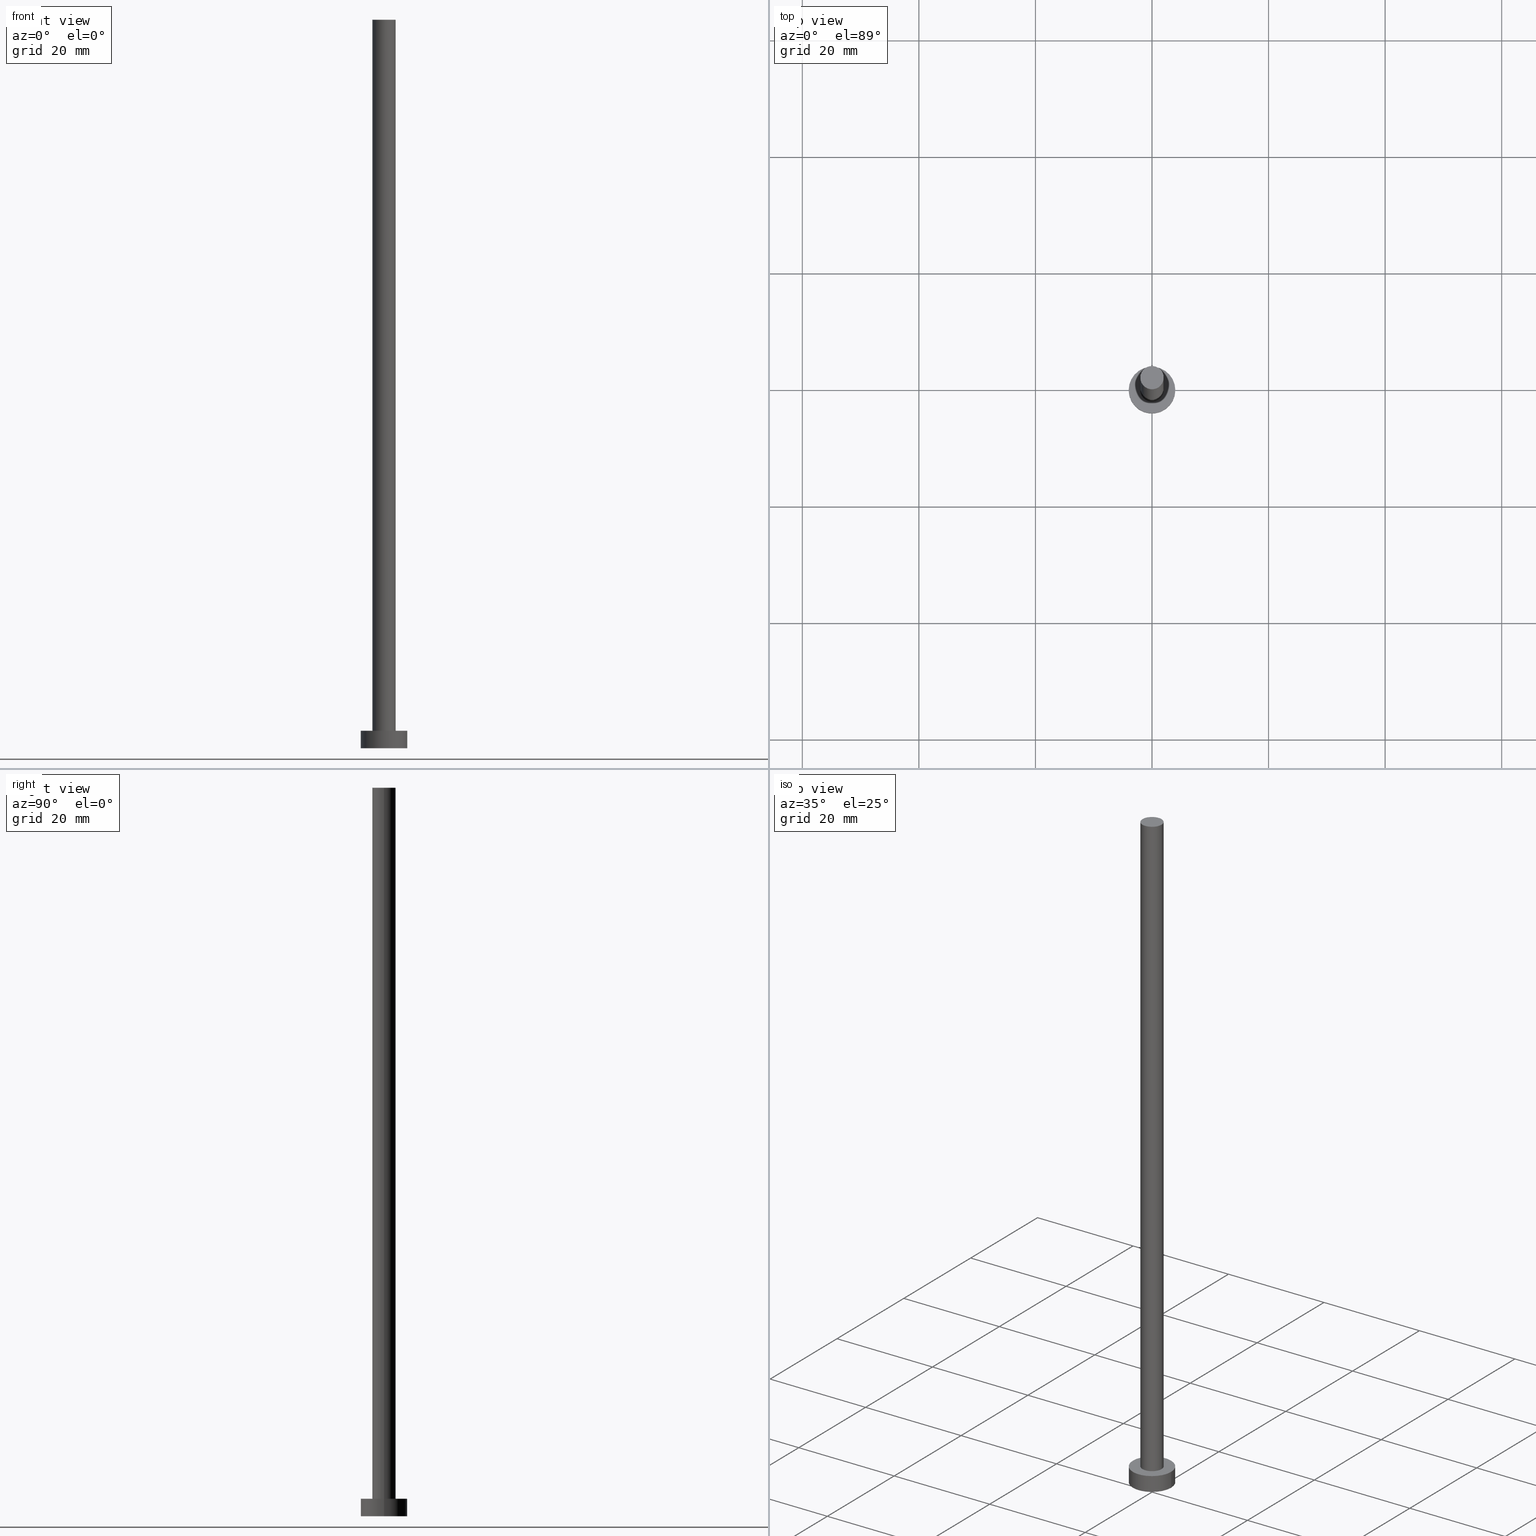
[diagram: canonical four-view strip — front | top / right | iso, engineering-drawing reading convention]
A machine part, canonical four-view strip (front | top / right | iso — engineering-drawing reading convention). The complete STEP part file that produces these views, byte-faithful:
ISO-10303-21;
HEADER;
FILE_DESCRIPTION (( 'STEP AP203' ),
    '1' );
FILE_NAME ('e45c.STEP',
    '2023-02-12T12:39:57',
    ( '' ),
    ( '' ),
    'SwSTEP 2.0',
    'SolidWorks 2019',
    '' );
FILE_SCHEMA (( 'CONFIG_CONTROL_DESIGN' ));
ENDSEC;

DATA;
#1 =( NAMED_UNIT ( * ) PLANE_ANGLE_UNIT ( ) SI_UNIT ( $, .RADIAN. ) );
#2 = SECURITY_CLASSIFICATION ( '', '', #237 ) ;
#3 = PERSON_AND_ORGANIZATION_ROLE ( 'classification_officer' ) ;
#4 = APPROVAL ( #110, 'NEUR�EN�' ) ;
#5 = CARTESIAN_POINT ( 'NONE',  ( 0.000000000000000000, 0.000000000000000000, 3.000000000000000000 ) ) ;
#6 = EDGE_LOOP ( 'NONE', ( #243, #97 ) ) ;
#7 = CIRCLE ( 'NONE', #185, 2.000000000000000000 ) ;
#8 = ORIENTED_EDGE ( 'NONE', *, *, #83, .F. ) ;
#9 = LOCAL_TIME ( 13, 39, 57.00000000000000000, #179 ) ;
#10 = ORIENTED_EDGE ( 'NONE', *, *, #111, .T. ) ;
#11 = PRODUCT_DEFINITION ( 'NEZN�M�', '', #41, #196 ) ;
#12 = CARTESIAN_POINT ( 'NONE',  ( 4.000000000000000000, 4.898587196589412829E-16, 3.000000000000000000 ) ) ;
#13 = DIRECTION ( 'NONE',  ( 0.000000000000000000, 0.000000000000000000, 1.000000000000000000 ) ) ;
#14 = CC_DESIGN_DATE_AND_TIME_ASSIGNMENT ( #163, #68, ( #11 ) ) ;
#15 = FACE_OUTER_BOUND ( 'NONE', #134, .T. ) ;
#16 = AXIS2_PLACEMENT_3D ( 'NONE', #174, #215, #65 ) ;
#17 = CARTESIAN_POINT ( 'NONE',  ( 0.000000000000000000, 0.000000000000000000, 0.000000000000000000 ) ) ;
#18 = DIRECTION ( 'NONE',  ( -0.000000000000000000, -0.000000000000000000, -1.000000000000000000 ) ) ;
#19 = COORDINATED_UNIVERSAL_TIME_OFFSET ( 1, 0, .AHEAD. ) ;
#20 = CIRCLE ( 'NONE', #167, 4.000000000000000000 ) ;
#21 = APPROVAL ( #224, 'NEUR�EN�' ) ;
#22 = PERSON_AND_ORGANIZATION_ROLE ( 'design_supplier' ) ;
#23 = PERSON_AND_ORGANIZATION ( #78, #148 ) ;
#24 = APPLICATION_PROTOCOL_DEFINITION ( 'international standard', 'config_control_design', 1994, #62 ) ;
#25 = AXIS2_PLACEMENT_3D ( 'NONE', #206, #112, #184 ) ;
#26 = CALENDAR_DATE ( 2023, 12, 2 ) ;
#27 = ORIENTED_EDGE ( 'NONE', *, *, #61, .F. ) ;
#28 = MANIFOLD_SOLID_BREP ( 'P�idat vysunut�m3', #47 ) ;
#29 = DIRECTION ( 'NONE',  ( 1.000000000000000000, 0.000000000000000000, 0.000000000000000000 ) ) ;
#30 = CC_DESIGN_PERSON_AND_ORGANIZATION_ASSIGNMENT ( #89, #146, ( #41 ) ) ;
#31 = VERTEX_POINT ( 'NONE', #172 ) ;
#32 = CC_DESIGN_PERSON_AND_ORGANIZATION_ASSIGNMENT ( #23, #3, ( #2 ) ) ;
#33 = ORIENTED_EDGE ( 'NONE', *, *, #245, .F. ) ;
#34 = CIRCLE ( 'NONE', #64, 4.000000000000000000 ) ;
#35 = CIRCLE ( 'NONE', #246, 2.000000000000000000 ) ;
#36 = DIRECTION ( 'NONE',  ( 1.000000000000000000, 0.000000000000000000, 0.000000000000000000 ) ) ;
#37 = CARTESIAN_POINT ( 'NONE',  ( 0.000000000000000000, 0.000000000000000000, 3.000000000000000000 ) ) ;
#38 = DIRECTION ( 'NONE',  ( 0.000000000000000000, 0.000000000000000000, 1.000000000000000000 ) ) ;
#39 = DIRECTION ( 'NONE',  ( 0.000000000000000000, 0.000000000000000000, 1.000000000000000000 ) ) ;
#40 = LOCAL_TIME ( 13, 39, 57.00000000000000000, #204 ) ;
#41 = PRODUCT_DEFINITION_FORMATION_WITH_SPECIFIED_SOURCE ( 'LIBOVOLN�', '', #222, .NOT_KNOWN. ) ;
#42 = LINE ( 'NONE', #121, #74 ) ;
#43 = DIRECTION ( 'NONE',  ( 1.000000000000000000, 0.000000000000000000, 0.000000000000000000 ) ) ;
#44 = APPROVAL_PERSON_ORGANIZATION ( #126, #147, #221 ) ;
#45 = COORDINATED_UNIVERSAL_TIME_OFFSET ( 1, 0, .AHEAD. ) ;
#46 = CALENDAR_DATE ( 2023, 12, 2 ) ;
#47 = CLOSED_SHELL ( 'NONE', ( #55, #75, #105, #238, #192, #109, #216 ) ) ;
#48 = DIRECTION ( 'NONE',  ( 1.000000000000000000, 0.000000000000000000, 0.000000000000000000 ) ) ;
#49 = SHAPE_DEFINITION_REPRESENTATION ( #69, #254 ) ;
#50 = VERTEX_POINT ( 'NONE', #248 ) ;
#51 = APPROVAL_DATE_TIME ( #56, #21 ) ;
#52 = ORIENTED_EDGE ( 'NONE', *, *, #240, .T. ) ;
#53 = AXIS2_PLACEMENT_3D ( 'NONE', #5, #149, #73 ) ;
#54 = EDGE_LOOP ( 'NONE', ( #33, #80 ) ) ;
#55 = ADVANCED_FACE ( 'NONE', ( #155 ), #209, .T. ) ;
#56 = DATE_AND_TIME ( #114, #153 ) ;
#57 = DIRECTION ( 'NONE',  ( -1.000000000000000000, 0.000000000000000000, 0.000000000000000000 ) ) ;
#58 = AXIS2_PLACEMENT_3D ( 'NONE', #232, #213, #138 ) ;
#59 = CARTESIAN_POINT ( 'NONE',  ( 4.000000000000000000, 4.898587196589412829E-16, 0.000000000000000000 ) ) ;
#60 = DIRECTION ( 'NONE',  ( -0.000000000000000000, -0.000000000000000000, -1.000000000000000000 ) ) ;
#61 = EDGE_CURVE ( 'NONE', #99, #152, #34, .T. ) ;
#62 = APPLICATION_CONTEXT ( 'configuration controlled 3d designs of mechanical parts and assemblies' ) ;
#63 = PLANE ( 'NONE',  #164 ) ;
#64 = AXIS2_PLACEMENT_3D ( 'NONE', #76, #132, #29 ) ;
#65 = DIRECTION ( 'NONE',  ( 1.000000000000000000, 0.000000000000000000, -0.000000000000000000 ) ) ;
#66 = EDGE_CURVE ( 'NONE', #152, #188, #139, .T. ) ;
#67 = APPROVAL_ROLE ( '' ) ;
#68 = DATE_TIME_ROLE ( 'creation_date' ) ;
#69 = PRODUCT_DEFINITION_SHAPE ( 'NONE', 'NONE',  #11 ) ;
#70 = CALENDAR_DATE ( 2023, 12, 2 ) ;
#71 = EDGE_CURVE ( 'NONE', #189, #188, #137, .T. ) ;
#72 =( LENGTH_UNIT ( ) NAMED_UNIT ( * ) SI_UNIT ( .MILLI., .METRE. ) );
#73 = DIRECTION ( 'NONE',  ( 1.000000000000000000, 0.000000000000000000, 0.000000000000000000 ) ) ;
#74 = VECTOR ( 'NONE', #194, 1000.000000000000000 ) ;
#75 = ADVANCED_FACE ( 'NONE', ( #250 ), #252, .T. ) ;
#76 = CARTESIAN_POINT ( 'NONE',  ( 0.000000000000000000, 0.000000000000000000, 3.000000000000000000 ) ) ;
#77 = ORIENTED_EDGE ( 'NONE', *, *, #226, .F. ) ;
#78 = PERSON ( 'NEUR�EN�', 'NEUR�EN�', 'NEUR�EN�', ('NEUR�EN�'), ('NEUR�EN�'), ('NEUR�EN�') ) ;
#79 = PRODUCT_RELATED_PRODUCT_CATEGORY ( 'detail', '', ( #222 ) ) ;
#80 = ORIENTED_EDGE ( 'NONE', *, *, #111, .F. ) ;
#81 = LINE ( 'NONE', #236, #130 ) ;
#82 = CC_DESIGN_APPROVAL ( #147, ( #11 ) ) ;
#83 = EDGE_CURVE ( 'NONE', #154, #31, #201, .T. ) ;
#84 = FACE_OUTER_BOUND ( 'NONE', #131, .T. ) ;
#85 = DIRECTION ( 'NONE',  ( -0.000000000000000000, -0.000000000000000000, -1.000000000000000000 ) ) ;
#86 = CARTESIAN_POINT ( 'NONE',  ( 0.000000000000000000, 0.000000000000000000, 3.000000000000000000 ) ) ;
#87 = FACE_OUTER_BOUND ( 'NONE', #6, .T. ) ;
#88 = CALENDAR_DATE ( 2023, 12, 2 ) ;
#89 = PERSON_AND_ORGANIZATION ( #78, #148 ) ;
#90 = AXIS2_PLACEMENT_3D ( 'NONE', #191, #85, #157 ) ;
#91 = VECTOR ( 'NONE', #18, 1000.000000000000000 ) ;
#92 = CC_DESIGN_DATE_AND_TIME_ASSIGNMENT ( #241, #96, ( #2 ) ) ;
#93 = AXIS2_PLACEMENT_3D ( 'NONE', #37, #198, #57 ) ;
#94 = ORIENTED_EDGE ( 'NONE', *, *, #207, .F. ) ;
#95 = APPROVAL_PERSON_ORGANIZATION ( #255, #4, #67 ) ;
#96 = DATE_TIME_ROLE ( 'classification_date' ) ;
#97 = ORIENTED_EDGE ( 'NONE', *, *, #61, .T. ) ;
#98 = ORIENTED_EDGE ( 'NONE', *, *, #101, .T. ) ;
#99 = VERTEX_POINT ( 'NONE', #12 ) ;
#100 = DIRECTION ( 'NONE',  ( 0.000000000000000000, 0.000000000000000000, 1.000000000000000000 ) ) ;
#101 = EDGE_CURVE ( 'NONE', #31, #154, #7, .T. ) ;
#102 = CARTESIAN_POINT ( 'NONE',  ( -4.000000000000000000, 0.000000000000000000, 3.000000000000000000 ) ) ;
#103 = DIRECTION ( 'NONE',  ( 0.000000000000000000, 0.000000000000000000, 1.000000000000000000 ) ) ;
#104 = FACE_OUTER_BOUND ( 'NONE', #136, .T. ) ;
#105 = ADVANCED_FACE ( 'NONE', ( #84 ), #253, .T. ) ;
#106 = FACE_BOUND ( 'NONE', #54, .T. ) ;
#107 = PERSON_AND_ORGANIZATION_ROLE ( 'creator' ) ;
#108 = PERSON_AND_ORGANIZATION ( #78, #148 ) ;
#109 = ADVANCED_FACE ( 'NONE', ( #197 ), #156, .T. ) ;
#110 = APPROVAL_STATUS ( 'not_yet_approved' ) ;
#111 = EDGE_CURVE ( 'NONE', #187, #50, #193, .T. ) ;
#112 = DIRECTION ( 'NONE',  ( -0.000000000000000000, -0.000000000000000000, -1.000000000000000000 ) ) ;
#113 = ORIENTED_EDGE ( 'NONE', *, *, #71, .F. ) ;
#114 = CALENDAR_DATE ( 2023, 12, 2 ) ;
#115 = ORIENTED_EDGE ( 'NONE', *, *, #66, .T. ) ;
#116 = COORDINATED_UNIVERSAL_TIME_OFFSET ( 1, 0, .AHEAD. ) ;
#117 = ORIENTED_EDGE ( 'NONE', *, *, #71, .T. ) ;
#118 = LOCAL_TIME ( 13, 39, 57.00000000000000000, #45 ) ;
#119 = PLANE ( 'NONE',  #235 ) ;
#120 = DIRECTION ( 'NONE',  ( 0.000000000000000000, 0.000000000000000000, 1.000000000000000000 ) ) ;
#121 = CARTESIAN_POINT ( 'NONE',  ( 2.000000000000000000, 2.449293598294705921E-16, 125.0000000000000000 ) ) ;
#122 = CC_DESIGN_PERSON_AND_ORGANIZATION_ASSIGNMENT ( #108, #124, ( #222 ) ) ;
#123 = CARTESIAN_POINT ( 'NONE',  ( 4.000000000000000000, 4.898587196589412829E-16, 3.000000000000000000 ) ) ;
#124 = PERSON_AND_ORGANIZATION_ROLE ( 'design_owner' ) ;
#125 = AXIS2_PLACEMENT_3D ( 'NONE', #86, #38, #36 ) ;
#126 = PERSON_AND_ORGANIZATION ( #78, #148 ) ;
#127 = EDGE_CURVE ( 'NONE', #188, #189, #20, .T. ) ;
#128 =( NAMED_UNIT ( * ) SI_UNIT ( $, .STERADIAN. ) SOLID_ANGLE_UNIT ( ) );
#129 = APPLICATION_PROTOCOL_DEFINITION ( 'international standard', 'config_control_design', 1994, #183 ) ;
#130 = VECTOR ( 'NONE', #220, 1000.000000000000000 ) ;
#131 = EDGE_LOOP ( 'NONE', ( #77, #168, #115, #247 ) ) ;
#132 = DIRECTION ( 'NONE',  ( 0.000000000000000000, 0.000000000000000000, 1.000000000000000000 ) ) ;
#133 = AXIS2_PLACEMENT_3D ( 'NONE', #217, #144, #158 ) ;
#134 = EDGE_LOOP ( 'NONE', ( #98, #135 ) ) ;
#135 = ORIENTED_EDGE ( 'NONE', *, *, #83, .T. ) ;
#136 = EDGE_LOOP ( 'NONE', ( #169, #113 ) ) ;
#137 = CIRCLE ( 'NONE', #58, 4.000000000000000000 ) ;
#138 = DIRECTION ( 'NONE',  ( 1.000000000000000000, 0.000000000000000000, 0.000000000000000000 ) ) ;
#139 = LINE ( 'NONE', #229, #242 ) ;
#140 = CARTESIAN_POINT ( 'NONE',  ( 2.000000000000000000, 2.449293598294705921E-16, 125.0000000000000000 ) ) ;
#141 = UNCERTAINTY_MEASURE_WITH_UNIT (LENGTH_MEASURE( 1.000000000000000082E-05 ), #72, 'distance_accuracy_value', 'NONE');
#142 = CARTESIAN_POINT ( 'NONE',  ( 0.000000000000000000, 0.000000000000000000, 125.0000000000000000 ) ) ;
#143 = CC_DESIGN_SECURITY_CLASSIFICATION ( #2, ( #41 ) ) ;
#144 = DIRECTION ( 'NONE',  ( -0.000000000000000000, -0.000000000000000000, -1.000000000000000000 ) ) ;
#145 = APPROVAL_STATUS ( 'not_yet_approved' ) ;
#146 = PERSON_AND_ORGANIZATION_ROLE ( 'creator' ) ;
#147 = APPROVAL ( #145, 'NEUR�EN�' ) ;
#148 = ORGANIZATION ( 'NEUR�EN�', 'NEUR�EN�', '' ) ;
#149 = DIRECTION ( 'NONE',  ( 0.000000000000000000, 0.000000000000000000, 1.000000000000000000 ) ) ;
#150 = ORIENTED_EDGE ( 'NONE', *, *, #245, .T. ) ;
#151 = EDGE_LOOP ( 'NONE', ( #27, #211, #117, #244 ) ) ;
#152 = VERTEX_POINT ( 'NONE', #102 ) ;
#153 = LOCAL_TIME ( 13, 39, 57.00000000000000000, #116 ) ;
#154 = VERTEX_POINT ( 'NONE', #140 ) ;
#155 = FACE_OUTER_BOUND ( 'NONE', #166, .T. ) ;
#156 = CYLINDRICAL_SURFACE ( 'NONE', #90, 2.000000000000000000 ) ;
#157 = DIRECTION ( 'NONE',  ( -1.000000000000000000, 0.000000000000000000, 0.000000000000000000 ) ) ;
#158 = DIRECTION ( 'NONE',  ( -1.000000000000000000, 0.000000000000000000, 0.000000000000000000 ) ) ;
#159 = PLANE ( 'NONE',  #16 ) ;
#160 = PERSON_AND_ORGANIZATION ( #78, #148 ) ;
#161 = APPROVAL_DATE_TIME ( #182, #4 ) ;
#162 = CARTESIAN_POINT ( 'NONE',  ( 0.000000000000000000, 0.000000000000000000, 0.000000000000000000 ) ) ;
#163 = DATE_AND_TIME ( #46, #40 ) ;
#164 = AXIS2_PLACEMENT_3D ( 'NONE', #142, #103, #231 ) ;
#165 = DIRECTION ( 'NONE',  ( 0.000000000000000000, 0.000000000000000000, 1.000000000000000000 ) ) ;
#166 = EDGE_LOOP ( 'NONE', ( #8, #171, #10, #227 ) ) ;
#167 = AXIS2_PLACEMENT_3D ( 'NONE', #17, #39, #233 ) ;
#168 = ORIENTED_EDGE ( 'NONE', *, *, #249, .F. ) ;
#169 = ORIENTED_EDGE ( 'NONE', *, *, #127, .F. ) ;
#170 = PERSON_AND_ORGANIZATION ( #78, #148 ) ;
#171 = ORIENTED_EDGE ( 'NONE', *, *, #207, .T. ) ;
#172 = CARTESIAN_POINT ( 'NONE',  ( -2.000000000000000000, 0.000000000000000000, 125.0000000000000000 ) ) ;
#173 = DIRECTION ( 'NONE',  ( 1.000000000000000000, 0.000000000000000000, -0.000000000000000000 ) ) ;
#174 = CARTESIAN_POINT ( 'NONE',  ( 0.000000000000000000, 0.000000000000000000, 0.000000000000000000 ) ) ;
#175 = CARTESIAN_POINT ( 'NONE',  ( -4.000000000000000000, 0.000000000000000000, 0.000000000000000000 ) ) ;
#176 = CARTESIAN_POINT ( 'NONE',  ( 0.000000000000000000, 0.000000000000000000, 125.0000000000000000 ) ) ;
#177 = CARTESIAN_POINT ( 'NONE',  ( 0.000000000000000000, 0.000000000000000000, 125.0000000000000000 ) ) ;
#178 = CARTESIAN_POINT ( 'NONE',  ( 0.000000000000000000, 0.000000000000000000, 3.000000000000000000 ) ) ;
#179 = COORDINATED_UNIVERSAL_TIME_OFFSET ( 1, 0, .AHEAD. ) ;
#180 = CC_DESIGN_PERSON_AND_ORGANIZATION_ASSIGNMENT ( #160, #107, ( #11 ) ) ;
#181 = AXIS2_PLACEMENT_3D ( 'NONE', #162, #165, #48 ) ;
#182 = DATE_AND_TIME ( #88, #118 ) ;
#183 = APPLICATION_CONTEXT ( 'configuration controlled 3d designs of mechanical parts and assemblies' ) ;
#184 = DIRECTION ( 'NONE',  ( -1.000000000000000000, 0.000000000000000000, 0.000000000000000000 ) ) ;
#185 = AXIS2_PLACEMENT_3D ( 'NONE', #177, #120, #234 ) ;
#186 = CC_DESIGN_APPROVAL ( #21, ( #2 ) ) ;
#187 = VERTEX_POINT ( 'NONE', #214 ) ;
#188 = VERTEX_POINT ( 'NONE', #175 ) ;
#189 = VERTEX_POINT ( 'NONE', #59 ) ;
#190 = CARTESIAN_POINT ( 'NONE',  ( 0.000000000000000000, 0.000000000000000000, 3.000000000000000000 ) ) ;
#191 = CARTESIAN_POINT ( 'NONE',  ( 0.000000000000000000, 0.000000000000000000, 125.0000000000000000 ) ) ;
#192 = ADVANCED_FACE ( 'NONE', ( #104 ), #159, .F. ) ;
#193 = CIRCLE ( 'NONE', #125, 2.000000000000000000 ) ;
#194 = DIRECTION ( 'NONE',  ( -0.000000000000000000, -0.000000000000000000, -1.000000000000000000 ) ) ;
#195 = CC_DESIGN_APPROVAL ( #4, ( #41 ) ) ;
#196 = DESIGN_CONTEXT ( 'detailed design', #62, 'design' ) ;
#197 = FACE_OUTER_BOUND ( 'NONE', #225, .T. ) ;
#198 = DIRECTION ( 'NONE',  ( -0.000000000000000000, -0.000000000000000000, -1.000000000000000000 ) ) ;
#199 = CC_DESIGN_PERSON_AND_ORGANIZATION_ASSIGNMENT ( #239, #22, ( #41 ) ) ;
#200 = DIRECTION ( 'NONE',  ( 0.000000000000000000, 0.000000000000000000, 1.000000000000000000 ) ) ;
#201 = CIRCLE ( 'NONE', #230, 2.000000000000000000 ) ;
#202 = CIRCLE ( 'NONE', #53, 4.000000000000000000 ) ;
#203 = DATE_AND_TIME ( #26, #210 ) ;
#204 = COORDINATED_UNIVERSAL_TIME_OFFSET ( 1, 0, .AHEAD. ) ;
#205 = APPROVAL_PERSON_ORGANIZATION ( #170, #21, #208 ) ;
#206 = CARTESIAN_POINT ( 'NONE',  ( 0.000000000000000000, 0.000000000000000000, 125.0000000000000000 ) ) ;
#207 = EDGE_CURVE ( 'NONE', #154, #187, #42, .T. ) ;
#208 = APPROVAL_ROLE ( '' ) ;
#209 = CYLINDRICAL_SURFACE ( 'NONE', #25, 2.000000000000000000 ) ;
#210 = LOCAL_TIME ( 13, 39, 57.00000000000000000, #19 ) ;
#211 = ORIENTED_EDGE ( 'NONE', *, *, #226, .T. ) ;
#212 = DIRECTION ( 'NONE',  ( 1.000000000000000000, 0.000000000000000000, 0.000000000000000000 ) ) ;
#213 = DIRECTION ( 'NONE',  ( 0.000000000000000000, 0.000000000000000000, 1.000000000000000000 ) ) ;
#214 = CARTESIAN_POINT ( 'NONE',  ( 2.000000000000000000, 2.449293598294705921E-16, 3.000000000000000000 ) ) ;
#215 = DIRECTION ( 'NONE',  ( 0.000000000000000000, 0.000000000000000000, 1.000000000000000000 ) ) ;
#216 = ADVANCED_FACE ( 'NONE', ( #15 ), #63, .T. ) ;
#217 = CARTESIAN_POINT ( 'NONE',  ( 0.000000000000000000, 0.000000000000000000, 3.000000000000000000 ) ) ;
#218 = MECHANICAL_CONTEXT ( 'NONE', #183, 'mechanical' ) ;
#219 = APPROVAL_DATE_TIME ( #203, #147 ) ;
#220 = DIRECTION ( 'NONE',  ( -0.000000000000000000, -0.000000000000000000, -1.000000000000000000 ) ) ;
#221 = APPROVAL_ROLE ( '' ) ;
#222 = PRODUCT ( 'e45c', 'e45c', '', ( #218 ) ) ;
#223 =( GEOMETRIC_REPRESENTATION_CONTEXT ( 3 ) GLOBAL_UNCERTAINTY_ASSIGNED_CONTEXT ( ( #141 ) ) GLOBAL_UNIT_ASSIGNED_CONTEXT ( ( #72, #1, #128 ) ) REPRESENTATION_CONTEXT ( 'NONE', 'WORKASPACE' ) );
#224 = APPROVAL_STATUS ( 'not_yet_approved' ) ;
#225 = EDGE_LOOP ( 'NONE', ( #94, #228, #52, #150 ) ) ;
#226 = EDGE_CURVE ( 'NONE', #99, #189, #251, .T. ) ;
#227 = ORIENTED_EDGE ( 'NONE', *, *, #240, .F. ) ;
#228 = ORIENTED_EDGE ( 'NONE', *, *, #101, .F. ) ;
#229 = CARTESIAN_POINT ( 'NONE',  ( -4.000000000000000000, 0.000000000000000000, 3.000000000000000000 ) ) ;
#230 = AXIS2_PLACEMENT_3D ( 'NONE', #176, #13, #212 ) ;
#231 = DIRECTION ( 'NONE',  ( 1.000000000000000000, 0.000000000000000000, -0.000000000000000000 ) ) ;
#232 = CARTESIAN_POINT ( 'NONE',  ( 0.000000000000000000, 0.000000000000000000, 0.000000000000000000 ) ) ;
#233 = DIRECTION ( 'NONE',  ( 1.000000000000000000, 0.000000000000000000, 0.000000000000000000 ) ) ;
#234 = DIRECTION ( 'NONE',  ( 1.000000000000000000, 0.000000000000000000, 0.000000000000000000 ) ) ;
#235 = AXIS2_PLACEMENT_3D ( 'NONE', #190, #100, #173 ) ;
#236 = CARTESIAN_POINT ( 'NONE',  ( -2.000000000000000000, 0.000000000000000000, 125.0000000000000000 ) ) ;
#237 = SECURITY_CLASSIFICATION_LEVEL ( 'unclassified' ) ;
#238 = ADVANCED_FACE ( 'NONE', ( #106, #87 ), #119, .T. ) ;
#239 = PERSON_AND_ORGANIZATION ( #78, #148 ) ;
#240 = EDGE_CURVE ( 'NONE', #31, #50, #81, .T. ) ;
#241 = DATE_AND_TIME ( #70, #9 ) ;
#242 = VECTOR ( 'NONE', #60, 1000.000000000000000 ) ;
#243 = ORIENTED_EDGE ( 'NONE', *, *, #249, .T. ) ;
#244 = ORIENTED_EDGE ( 'NONE', *, *, #66, .F. ) ;
#245 = EDGE_CURVE ( 'NONE', #50, #187, #35, .T. ) ;
#246 = AXIS2_PLACEMENT_3D ( 'NONE', #178, #200, #43 ) ;
#247 = ORIENTED_EDGE ( 'NONE', *, *, #127, .T. ) ;
#248 = CARTESIAN_POINT ( 'NONE',  ( -2.000000000000000000, 0.000000000000000000, 3.000000000000000000 ) ) ;
#249 = EDGE_CURVE ( 'NONE', #152, #99, #202, .T. ) ;
#250 = FACE_OUTER_BOUND ( 'NONE', #151, .T. ) ;
#251 = LINE ( 'NONE', #123, #91 ) ;
#252 = CYLINDRICAL_SURFACE ( 'NONE', #93, 4.000000000000000000 ) ;
#253 = CYLINDRICAL_SURFACE ( 'NONE', #133, 4.000000000000000000 ) ;
#254 = ADVANCED_BREP_SHAPE_REPRESENTATION ( 'e45c', ( #28, #181 ), #223 ) ;
#255 = PERSON_AND_ORGANIZATION ( #78, #148 ) ;
ENDSEC;
END-ISO-10303-21;
